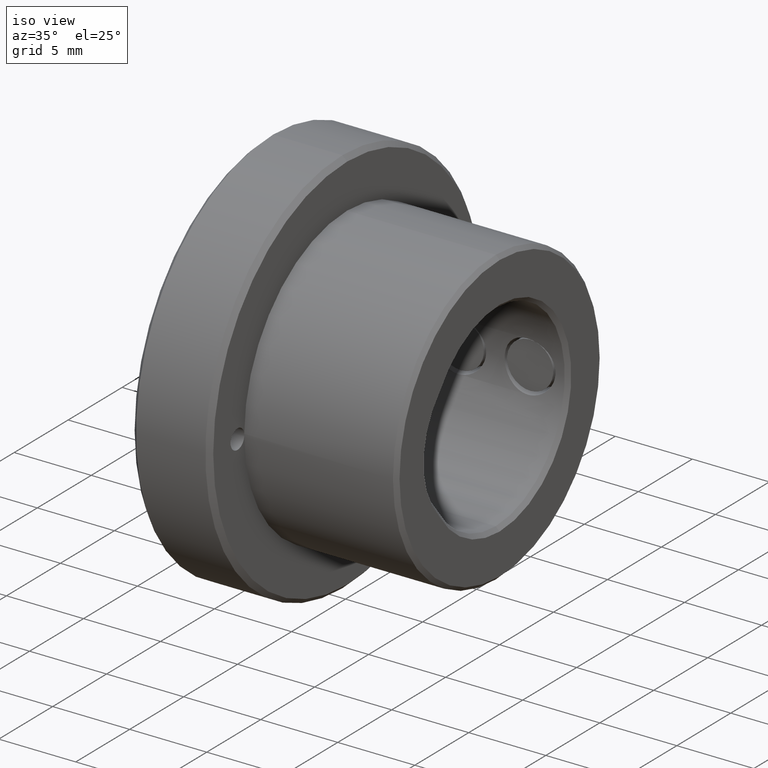
[diagram: clean part render]
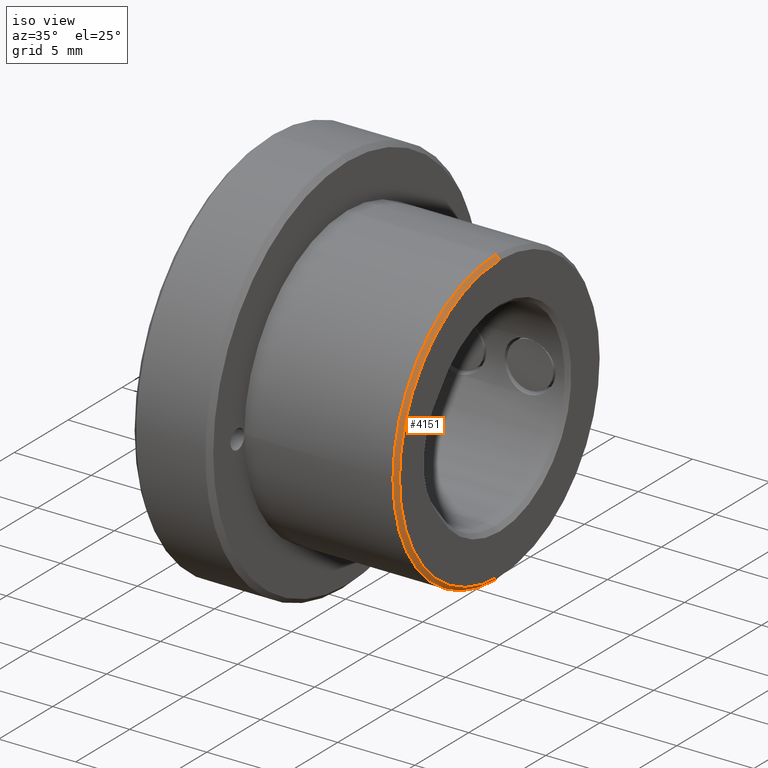
[diagram: same view with one face highlighted and labeled with its STEP entity id]
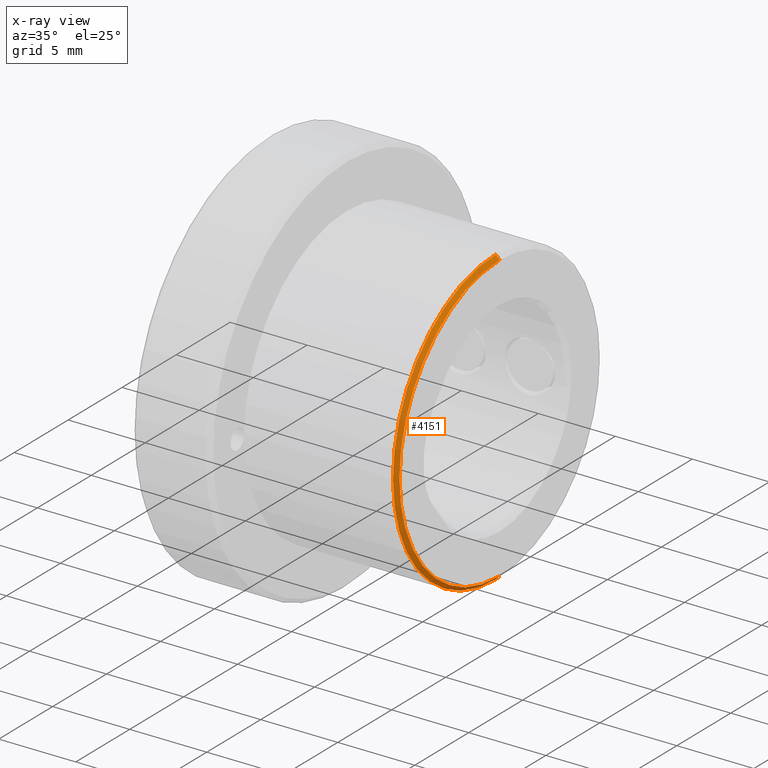
[diagram: x-ray of the same camera — body ghosted, the highlighted face saturated]
A machine part, iso view. The second image highlights one B-rep face of the part: STEP entity #4151.
The next image is the same camera in x-ray: the body ghosted, the highlighted face saturated — about 0% of this face is hidden behind the body in this view.
In plain terms, the highlighted conical surface has half-angle 45 deg.
Its self-contained STEP definition (entity closure, byte-faithful):
#122 = CARTESIAN_POINT ( 'NONE',  ( 14.75000000000000000, 1.166476076187854022E-15, 9.525000000000000355 ) ) ;
#205 = DIRECTION ( 'NONE',  ( -1.000000000000000000, 0.000000000000000000, 0.000000000000000000 ) ) ;
#479 = CIRCLE ( 'NONE', #935, 9.525000000000000355 ) ;
#552 = CONICAL_SURFACE ( 'NONE', #1094, 9.275000000000002132, 0.7853981633974447263 ) ;
#706 = CARTESIAN_POINT ( 'NONE',  ( 15.00000000000000000, 1.151167991198512128E-15, -9.275000000000002132 ) ) ;
#792 = DIRECTION ( 'NONE',  ( -0.7071067811865500152, 0.000000000000000000, 0.7071067811865451302 ) ) ;
#808 = DIRECTION ( 'NONE',  ( -0.7071067811865500152, 8.659560562354903276E-17, -0.7071067811865451302 ) ) ;
#820 = ORIENTED_EDGE ( 'NONE', *, *, #1412, .F. ) ;
#849 = AXIS2_PLACEMENT_3D ( 'NONE', #4844, #3335, #1882 ) ;
#935 = AXIS2_PLACEMENT_3D ( 'NONE', #1985, #205, #1937 ) ;
#1094 = AXIS2_PLACEMENT_3D ( 'NONE', #2029, #3075, #3460 ) ;
#1156 = ORIENTED_EDGE ( 'NONE', *, *, #4181, .F. ) ;
#1307 = ORIENTED_EDGE ( 'NONE', *, *, #4816, .T. ) ;
#1412 = EDGE_CURVE ( 'NONE', #1677, #4759, #3389, .T. ) ;
#1677 = VERTEX_POINT ( 'NONE', #706 ) ;
#1805 = EDGE_CURVE ( 'NONE', #3918, #1677, #4628, .T. ) ;
#1867 = CARTESIAN_POINT ( 'NONE',  ( 15.00000000000000000, 0.000000000000000000, 9.275000000000002132 ) ) ;
#1882 = DIRECTION ( 'NONE',  ( 0.000000000000000000, 0.000000000000000000, -1.000000000000000000 ) ) ;
#1937 = DIRECTION ( 'NONE',  ( 0.000000000000000000, 0.000000000000000000, -1.000000000000000000 ) ) ;
#1941 = CARTESIAN_POINT ( 'NONE',  ( 15.00000000000000000, 1.135859906209170235E-15, -9.275000000000002132 ) ) ;
#1985 = CARTESIAN_POINT ( 'NONE',  ( 14.75000000000000000, 0.000000000000000000, 0.000000000000000000 ) ) ;
#2029 = CARTESIAN_POINT ( 'NONE',  ( 15.00000000000000000, 0.000000000000000000, 0.000000000000000000 ) ) ;
#2247 = CARTESIAN_POINT ( 'NONE',  ( 14.75000000000000000, 0.000000000000000000, -9.525000000000000355 ) ) ;
#2516 = ORIENTED_EDGE ( 'NONE', *, *, #1805, .F. ) ;
#2941 = VERTEX_POINT ( 'NONE', #122 ) ;
#3009 = LINE ( 'NONE', #1867, #3754 ) ;
#3031 = VECTOR ( 'NONE', #808, 1000.000000000000114 ) ;
#3075 = DIRECTION ( 'NONE',  ( -1.000000000000000000, 0.000000000000000000, 0.000000000000000000 ) ) ;
#3335 = DIRECTION ( 'NONE',  ( 1.000000000000000000, 0.000000000000000000, 0.000000000000000000 ) ) ;
#3389 = LINE ( 'NONE', #1941, #3031 ) ;
#3460 = DIRECTION ( 'NONE',  ( 0.000000000000000000, 0.000000000000000000, 1.000000000000000000 ) ) ;
#3541 = FACE_OUTER_BOUND ( 'NONE', #3847, .T. ) ;
#3754 = VECTOR ( 'NONE', #792, 1000.000000000000114 ) ;
#3847 = EDGE_LOOP ( 'NONE', ( #820, #2516, #1307, #1156 ) ) ;
#3918 = VERTEX_POINT ( 'NONE', #4279 ) ;
#4151 = ADVANCED_FACE ( 'NONE', ( #3541 ), #552, .T. ) ;
#4181 = EDGE_CURVE ( 'NONE', #4759, #2941, #479, .T. ) ;
#4279 = CARTESIAN_POINT ( 'NONE',  ( 15.00000000000000000, 0.000000000000000000, 9.275000000000002132 ) ) ;
#4628 = CIRCLE ( 'NONE', #849, 9.275000000000002132 ) ;
#4759 = VERTEX_POINT ( 'NONE', #2247 ) ;
#4816 = EDGE_CURVE ( 'NONE', #3918, #2941, #3009, .T. ) ;
#4844 = CARTESIAN_POINT ( 'NONE',  ( 15.00000000000000000, 0.000000000000000000, 0.000000000000000000 ) ) ;